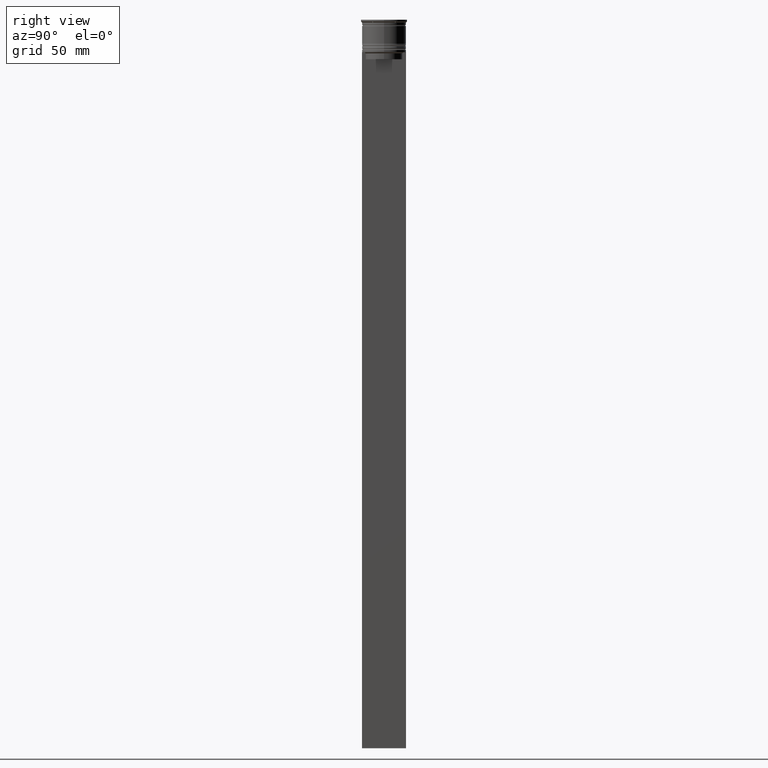
[diagram: clean part render]
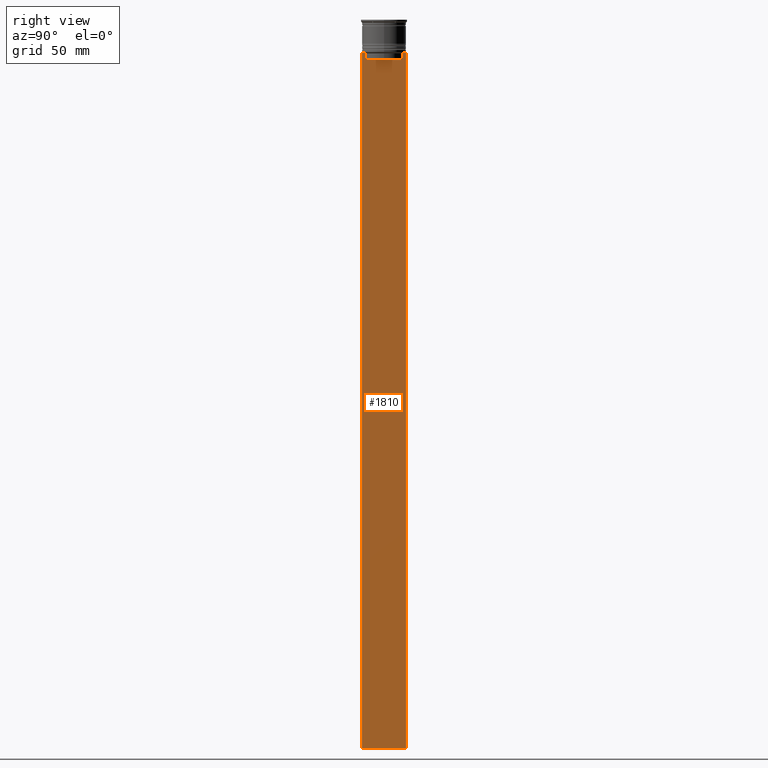
[diagram: same view with one face highlighted and labeled with its STEP entity id]
A machine part, right view. The second image highlights one B-rep face of the part: STEP entity #1810.
In plain terms, the highlighted planar face has unit normal (-1, 0, 0).
Its self-contained STEP definition (entity closure, byte-faithful):
#26 = CARTESIAN_POINT ( 'NONE',  ( 0.5000000000000000000, 7.884161337770803080, 0.000000000000000000 ) ) ;
#27 = CARTESIAN_POINT ( 'NONE',  ( 0.5000000000000000000, -9.500000000000001776, -314.0000000000000000 ) ) ;
#44 = CARTESIAN_POINT ( 'NONE',  ( 0.5000000000000000000, -9.500000000000001776, -14.00000000000000178 ) ) ;
#65 = LINE ( 'NONE', #698, #896 ) ;
#104 = CARTESIAN_POINT ( 'NONE',  ( 0.5000000000000000000, -7.884161337770803080, -17.00000000000000000 ) ) ;
#146 = DIRECTION ( 'NONE',  ( 0.000000000000000000, 0.000000000000000000, -1.000000000000000000 ) ) ;
#154 = CARTESIAN_POINT ( 'NONE',  ( 0.5000000000000000000, -9.500000000000001776, 5.026297590440445440 ) ) ;
#272 = VERTEX_POINT ( 'NONE', #807 ) ;
#274 = ORIENTED_EDGE ( 'NONE', *, *, #1488, .T. ) ;
#283 = ORIENTED_EDGE ( 'NONE', *, *, #2447, .T. ) ;
#302 = VECTOR ( 'NONE', #464, 1000.000000000000000 ) ;
#348 = CARTESIAN_POINT ( 'NONE',  ( 0.5000000000000000000, -9.500000000000001776, -14.00000000000000178 ) ) ;
#393 = EDGE_LOOP ( 'NONE', ( #2084, #2155, #854, #274, #1491, #283, #2322, #1370, #670, #1943, #1080, #1575 ) ) ;
#425 = EDGE_CURVE ( 'NONE', #1272, #1166, #2320, .T. ) ;
#426 = CARTESIAN_POINT ( 'NONE',  ( 0.5000000000000000000, -9.500000000000001776, -14.00000000000000178 ) ) ;
#448 = VERTEX_POINT ( 'NONE', #2470 ) ;
#454 = CARTESIAN_POINT ( 'NONE',  ( 0.5000000000000000000, -8.051152795888546265, -14.33334334204685057 ) ) ;
#464 = DIRECTION ( 'NONE',  ( 0.000000000000000000, 0.000000000000000000, -1.000000000000000000 ) ) ;
#466 = VERTEX_POINT ( 'NONE', #1270 ) ;
#482 = EDGE_CURVE ( 'NONE', #466, #2466, #1668, .T. ) ;
#490 = B_SPLINE_CURVE_WITH_KNOTS ( 'NONE', 3,
 ( #2481, #454, #1440, #1271 ),
 .UNSPECIFIED., .F., .F.,
 ( 4, 4 ),
 ( 0.03673372442973153046, 0.03744389749832059688 ),
 .UNSPECIFIED. ) ;
#492 = CARTESIAN_POINT ( 'NONE',  ( 0.5000000000000000000, -9.500000000000001776, 5.026297590440445440 ) ) ;
#493 = EDGE_CURVE ( 'NONE', #2466, #1172, #726, .T. ) ;
#500 = DIRECTION ( 'NONE',  ( 0.000000000000000000, 0.000000000000000000, -1.000000000000000000 ) ) ;
#513 = CARTESIAN_POINT ( 'NONE',  ( 0.5000000000000000000, 8.385105843100605583, -14.00000000000000178 ) ) ;
#514 = VECTOR ( 'NONE', #2148, 1000.000000000000000 ) ;
#516 = CARTESIAN_POINT ( 'NONE',  ( 0.5000000000000000000, 9.499999999999998224, -14.00000000000000178 ) ) ;
#548 = EDGE_CURVE ( 'NONE', #1671, #2238, #1358, .T. ) ;
#568 = LINE ( 'NONE', #492, #1589 ) ;
#615 = CARTESIAN_POINT ( 'NONE',  ( 0.5000000000000000000, -9.500000000000001776, -314.0000000000000000 ) ) ;
#670 = ORIENTED_EDGE ( 'NONE', *, *, #1275, .T. ) ;
#698 = CARTESIAN_POINT ( 'NONE',  ( 0.5000000000000000000, 7.899999999999994138, -17.00000000000000000 ) ) ;
#726 = LINE ( 'NONE', #2573, #1375 ) ;
#792 = EDGE_CURVE ( 'NONE', #2222, #272, #1542, .T. ) ;
#807 = CARTESIAN_POINT ( 'NONE',  ( 0.5000000000000000000, 9.499999999999998224, -314.0000000000000000 ) ) ;
#854 = ORIENTED_EDGE ( 'NONE', *, *, #425, .T. ) ;
#860 = CARTESIAN_POINT ( 'NONE',  ( 0.5000000000000000000, 7.884161337770803080, -14.50000000000000000 ) ) ;
#896 = VECTOR ( 'NONE', #1304, 1000.000000000000000 ) ;
#905 = CARTESIAN_POINT ( 'NONE',  ( 0.5000000000000000000, 8.218133718559618828, -14.16667606394327983 ) ) ;
#920 = EDGE_CURVE ( 'NONE', #448, #1272, #2041, .T. ) ;
#943 = VECTOR ( 'NONE', #2498, 1000.000000000000000 ) ;
#957 = CARTESIAN_POINT ( 'NONE',  ( 0.5000000000000000000, -7.884161337770803080, 0.000000000000000000 ) ) ;
#1005 = CARTESIAN_POINT ( 'NONE',  ( 0.5000000000000000000, -9.500000000000001776, -14.00000000000000178 ) ) ;
#1020 = FACE_OUTER_BOUND ( 'NONE', #393, .T. ) ;
#1043 = CARTESIAN_POINT ( 'NONE',  ( 0.5000000000000000000, 9.386692708297204035, -14.00000000000000178 ) ) ;
#1080 = ORIENTED_EDGE ( 'NONE', *, *, #792, .F. ) ;
#1161 = VECTOR ( 'NONE', #1993, 1000.000000000000000 ) ;
#1166 = VERTEX_POINT ( 'NONE', #2460 ) ;
#1172 = VERTEX_POINT ( 'NONE', #44 ) ;
#1242 = LINE ( 'NONE', #27, #943 ) ;
#1258 = DIRECTION ( 'NONE',  ( 0.000000000000000000, -1.000000000000000000, 0.000000000000000000 ) ) ;
#1270 = CARTESIAN_POINT ( 'NONE',  ( 0.5000000000000000000, -8.385105843100605583, -14.00000000000000178 ) ) ;
#1271 = CARTESIAN_POINT ( 'NONE',  ( 0.5000000000000000000, -8.385105843100605583, -14.00000000000000178 ) ) ;
#1272 = VERTEX_POINT ( 'NONE', #1718 ) ;
#1275 = EDGE_CURVE ( 'NONE', #1172, #1381, #568, .T. ) ;
#1304 = DIRECTION ( 'NONE',  ( 0.000000000000000000, -1.000000000000000000, 0.000000000000000000 ) ) ;
#1343 = CARTESIAN_POINT ( 'NONE',  ( 0.5000000000000000000, 8.051152811434374001, -14.33334332653219079 ) ) ;
#1358 = LINE ( 'NONE', #957, #1161 ) ;
#1362 = LINE ( 'NONE', #348, #514 ) ;
#1370 = ORIENTED_EDGE ( 'NONE', *, *, #493, .T. ) ;
#1375 = VECTOR ( 'NONE', #2231, 1000.000000000000000 ) ;
#1381 = VERTEX_POINT ( 'NONE', #615 ) ;
#1410 = LINE ( 'NONE', #1005, #2493 ) ;
#1440 = CARTESIAN_POINT ( 'NONE',  ( 0.5000000000000000000, -8.218133703942523738, -14.16667607853445787 ) ) ;
#1488 = EDGE_CURVE ( 'NONE', #1166, #1671, #65, .T. ) ;
#1491 = ORIENTED_EDGE ( 'NONE', *, *, #548, .T. ) ;
#1542 = LINE ( 'NONE', #2113, #2336 ) ;
#1575 = ORIENTED_EDGE ( 'NONE', *, *, #2644, .T. ) ;
#1589 = VECTOR ( 'NONE', #146, 1000.000000000000000 ) ;
#1643 = CARTESIAN_POINT ( 'NONE',  ( 0.5000000000000000000, -9.386692708297204035, -14.00000000000000178 ) ) ;
#1668 = LINE ( 'NONE', #426, #2158 ) ;
#1671 = VERTEX_POINT ( 'NONE', #104 ) ;
#1699 = EDGE_CURVE ( 'NONE', #1923, #448, #1362, .T. ) ;
#1718 = CARTESIAN_POINT ( 'NONE',  ( 0.5000000000000000000, 7.884161337770803080, -14.50000000000000000 ) ) ;
#1740 = CARTESIAN_POINT ( 'NONE',  ( 0.5000000000000000000, -7.884161337770803080, -14.50000000000000000 ) ) ;
#1810 = ADVANCED_FACE ( 'NONE', ( #1020 ), #2451, .F. ) ;
#1923 = VERTEX_POINT ( 'NONE', #1043 ) ;
#1943 = ORIENTED_EDGE ( 'NONE', *, *, #2397, .T. ) ;
#1993 = DIRECTION ( 'NONE',  ( -0.000000000000000000, -0.000000000000000000, 1.000000000000000000 ) ) ;
#2041 = B_SPLINE_CURVE_WITH_KNOTS ( 'NONE', 3,
 ( #513, #905, #1343, #860 ),
 .UNSPECIFIED., .F., .F.,
 ( 4, 4 ),
 ( 0.01426761478740281447, 0.01497538974438914448 ),
 .UNSPECIFIED. ) ;
#2084 = ORIENTED_EDGE ( 'NONE', *, *, #1699, .T. ) ;
#2113 = CARTESIAN_POINT ( 'NONE',  ( 0.5000000000000000000, 9.499999999999998224, 5.026297590440445440 ) ) ;
#2148 = DIRECTION ( 'NONE',  ( 0.000000000000000000, -1.000000000000000000, 0.000000000000000000 ) ) ;
#2155 = ORIENTED_EDGE ( 'NONE', *, *, #920, .T. ) ;
#2158 = VECTOR ( 'NONE', #1258, 1000.000000000000000 ) ;
#2222 = VERTEX_POINT ( 'NONE', #516 ) ;
#2231 = DIRECTION ( 'NONE',  ( 0.000000000000000000, -1.000000000000000000, 0.000000000000000000 ) ) ;
#2238 = VERTEX_POINT ( 'NONE', #1740 ) ;
#2255 = DIRECTION ( 'NONE',  ( -1.000000000000000000, 0.000000000000000000, 0.000000000000000000 ) ) ;
#2320 = LINE ( 'NONE', #26, #302 ) ;
#2322 = ORIENTED_EDGE ( 'NONE', *, *, #482, .T. ) ;
#2329 = AXIS2_PLACEMENT_3D ( 'NONE', #154, #2255, #2624 ) ;
#2336 = VECTOR ( 'NONE', #500, 1000.000000000000000 ) ;
#2397 = EDGE_CURVE ( 'NONE', #1381, #272, #1242, .T. ) ;
#2447 = EDGE_CURVE ( 'NONE', #2238, #466, #490, .T. ) ;
#2451 = PLANE ( 'NONE',  #2329 ) ;
#2460 = CARTESIAN_POINT ( 'NONE',  ( 0.5000000000000000000, 7.884161337770803080, -17.00000000000000000 ) ) ;
#2466 = VERTEX_POINT ( 'NONE', #1643 ) ;
#2470 = CARTESIAN_POINT ( 'NONE',  ( 0.5000000000000000000, 8.385105843100605583, -14.00000000000000178 ) ) ;
#2481 = CARTESIAN_POINT ( 'NONE',  ( 0.5000000000000000000, -7.884161337770803080, -14.50000000000000000 ) ) ;
#2493 = VECTOR ( 'NONE', #2643, 1000.000000000000000 ) ;
#2498 = DIRECTION ( 'NONE',  ( 0.000000000000000000, 1.000000000000000000, 0.000000000000000000 ) ) ;
#2573 = CARTESIAN_POINT ( 'NONE',  ( 0.5000000000000000000, -9.500000000000001776, -14.00000000000000178 ) ) ;
#2624 = DIRECTION ( 'NONE',  ( 0.000000000000000000, 0.000000000000000000, 1.000000000000000000 ) ) ;
#2643 = DIRECTION ( 'NONE',  ( 0.000000000000000000, -1.000000000000000000, 0.000000000000000000 ) ) ;
#2644 = EDGE_CURVE ( 'NONE', #2222, #1923, #1410, .T. ) ;